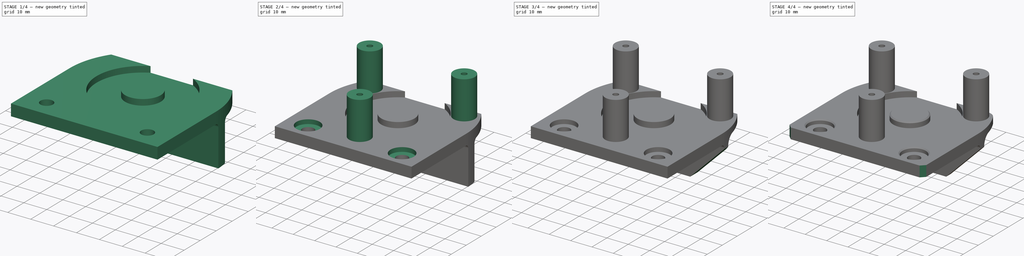
[diagram: build sequence overview — one tinted view per stage of 4, left to right]
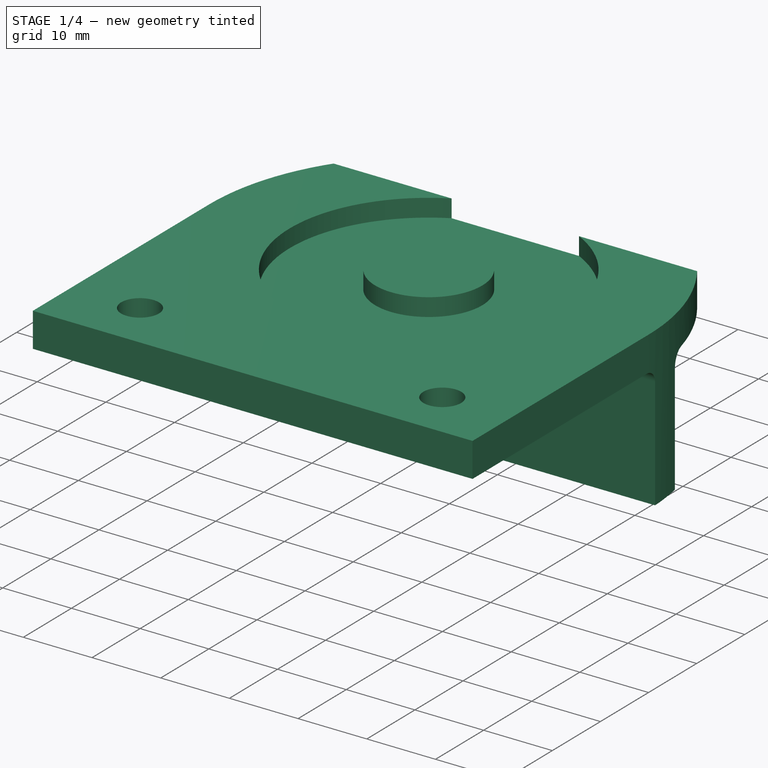
[diagram: stage 1 of 4 — iso view after this stage's code; geometry added in this stage tinted green]
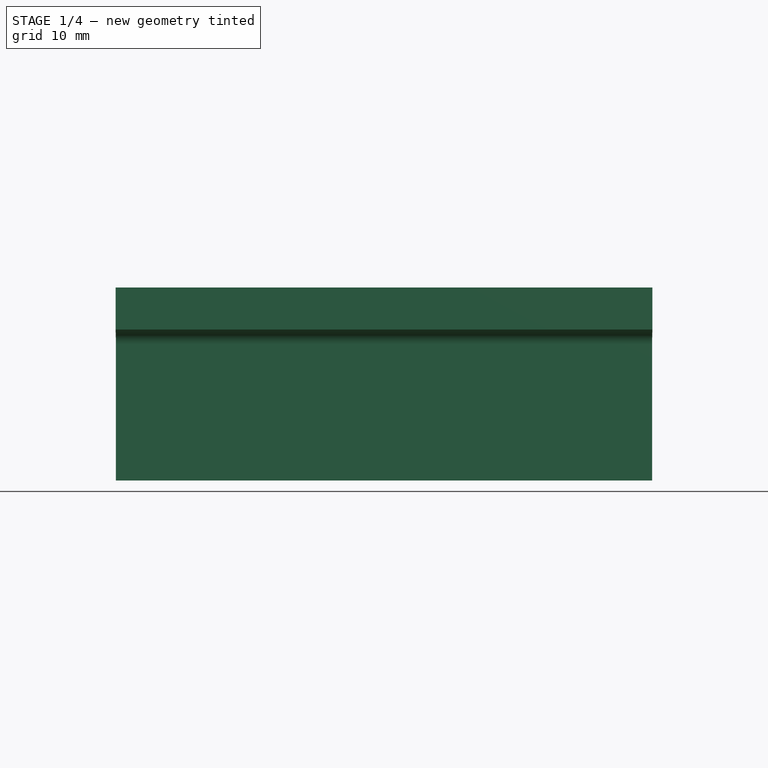
[diagram: stage 1 of 4 — front view after this stage's code; geometry added in this stage tinted green]
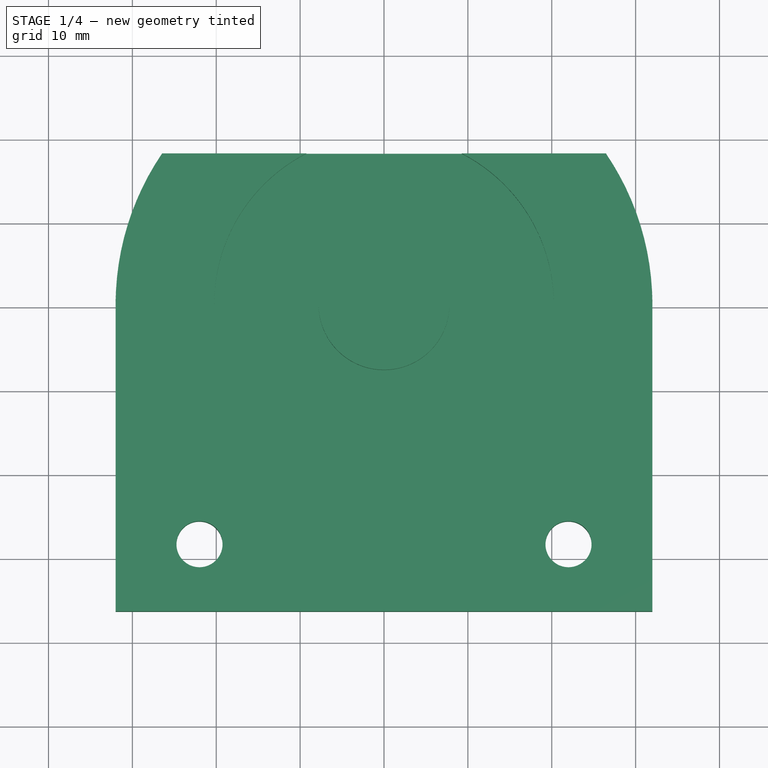
[diagram: stage 1 of 4 — top view after this stage's code; geometry added in this stage tinted green]
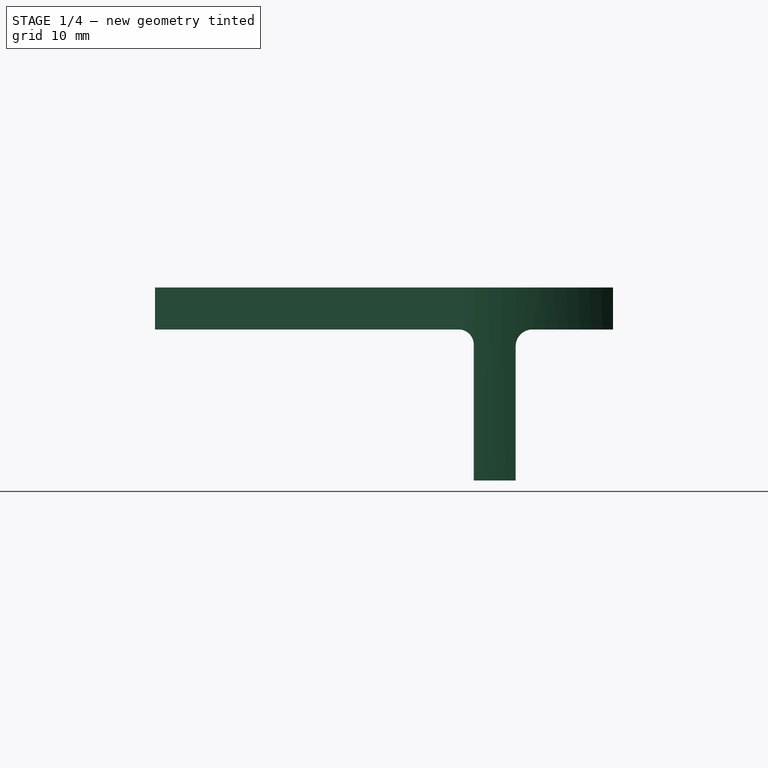
[diagram: stage 1 of 4 — right view after this stage's code; geometry added in this stage tinted green]
FCSTD DOCUMENT  (FreeCAD 0.18R16131 (Git))
Label: _Y_Tensioner_Frame
License: All rights reserved
LicenseURL: http://en.wikipedia.org/wiki/All_rights_reserved
objects: Sketcher::SketchObject×8, PartDesign::Pocket×6, PartDesign::Chamfer×3, PartDesign::Pad×2, PartDesign::Fillet×1, PartDesign::Body×1
note: 29 computed .brp shape members not serialized (recipe doc carries the construction recipe); baked Part::Feature solids carry a one-line shape summary decoded from their .brp

FEATURE [Sketcher::SketchObject] Sketch013
  MapMode = 5
  Placement = pos=(0,0,0) rot=(1,0,0;1.5708rad)
  Support = -> [XZ_Plane066]
  sketch-geometry (9):
    g0: LineSegment StartX=-32 StartY=-2 StartZ=0 EndX=-16 EndY=-18 EndZ=0
    g1: LineSegment StartX=-16 StartY=-18 StartZ=0 EndX=16 EndY=-18 EndZ=0
    g2: LineSegment StartX=16 StartY=-18 StartZ=0 EndX=32 EndY=-2 EndZ=0
    g3: LineSegment StartX=32 StartY=-2 StartZ=0 EndX=33 EndY=-2 EndZ=0
    g4: LineSegment StartX=33 StartY=-2 StartZ=0 EndX=33 EndY=-20 EndZ=0
    g5: LineSegment StartX=33 StartY=-20 StartZ=0 EndX=-33 EndY=-20 EndZ=0
    g6: LineSegment StartX=-33 StartY=-20 StartZ=0 EndX=-33 EndY=-2 EndZ=0
    g7: LineSegment StartX=-33 StartY=-2 StartZ=0 EndX=-32 EndY=-2 EndZ=0
    g8: Circle CenterX=0 CenterY=-10 CenterZ=0 NormalX=0 NormalY=0 NormalZ=1 AngleXU=0 Radius=2.75
  constraints (24):
    c: Coincident(g0,g1)
    c: Coincident(g1,g2)
    c: Coincident(g2,g3)
    c: Horizontal(g3)
    c: Coincident(g3,g4)
    c: Vertical(g4)
    c: Coincident(g4,g5)
    c: Coincident(g5,g6)
    c: Vertical(g6)
    c: Coincident(g6,g7)
    c: Coincident(g7,g0)
    c: Horizontal(g7)
    c: DistanceY(g6,g-1) = 2
    c: Symmetric(g0,g2,g-2)
    c: Symmetric(g5,g4,g-2)
    c: DistanceX(g5,g5) = 66
    c: DistanceX(g0,g2) = 64
    c: DistanceY(g1,g2) = 16
    c: DistanceY(g4,g4) = 18
    c: PointOnObject(g8,g-2)
    c: DistanceY(g8,g-1) = 10
    c: Diameter(g8) = 5.5
    c: Perpendicular(g2,g0)
    c: Symmetric(g1,g0,g-2)
FEATURE [Sketcher::SketchObject] Sketch015
  AttachmentOffset = pos=(0,0,-6.4) rot=(0,0,1;0.017453rad)
  ExternalGeometry = -> [Sketch013]
  MapMode = 5
  Placement = pos=(0,6.4,6.622e-13) rot=(0.999924,-0.008726,0.008726;1.57087rad)
  Support = -> [XZ_Plane066]
  sketch-geometry (1):
    g0: Circle CenterX=-0.174524 CenterY=-9.99848 CenterZ=0 NormalX=0 NormalY=0 NormalZ=1 AngleXU=0 Radius=5.5
  constraints (2):
    c: Coincident(g0,g-3)
    c: Diameter(g0) = 11
FEATURE [Sketcher::SketchObject] Sketch009
  MapMode = 5
  Placement = pos=(0,0,0) rot=(0.57735,0.57735,0.57735;2.0944rad)
  Support = -> [YZ_Plane065]
  sketch-geometry (10):
    g0: LineSegment StartX=-36.6 StartY=0 StartZ=0 EndX=-36.6 EndY=5 EndZ=0
    g1: LineSegment StartX=-36.6 StartY=5 StartZ=0 EndX=18 EndY=5 EndZ=0
    g2: LineSegment StartX=18 StartY=5 StartZ=0 EndX=18 EndY=0 EndZ=0
    g3: LineSegment StartX=18 StartY=-3e-16 StartZ=0 EndX=8.4 EndY=-3e-16 EndZ=0
    g4: LineSegment StartX=6.4 StartY=-2 StartZ=0 EndX=6.4 EndY=-18 EndZ=0
    g5: LineSegment StartX=6.4 StartY=-18 StartZ=0 EndX=1.4 EndY=-18 EndZ=0
    g6: LineSegment StartX=1.4 StartY=-18 StartZ=0 EndX=1.4 EndY=-1.8 EndZ=0
    g7: LineSegment StartX=-0.4 StartY=0 StartZ=0 EndX=-36.6 EndY=0 EndZ=0
    g8: ArcOfCircle CenterX=8.4 CenterY=-2 CenterZ=0 NormalX=0 NormalY=0 NormalZ=1 AngleXU=0 Radius=2 StartAngle=1.5708 EndAngle=3.14159
    g9: ArcOfCircle CenterX=-0.4 CenterY=-1.8 CenterZ=0 NormalX=0 NormalY=0 NormalZ=1 AngleXU=0 Radius=1.8 StartAngle=0 EndAngle=1.5708
  constraints (28):
    c: Coincident(g0,g1)
    c: Horizontal(g1)
    c: Coincident(g1,g2)
    c: Coincident(g2,g3)
    c: Horizontal(g3)
    c: Vertical(g4)
    c: Coincident(g4,g5)
    c: Coincident(g5,g6)
    c: Vertical(g6)
    c: Coincident(g7,g0)
    c: Horizontal(g7)
    c: Vertical(g0)
    c: Vertical(g2)
    c: Horizontal(g5)
    c: DistanceX(g0,g5) = 38
    c: DistanceY(g0,g0) = 5
    c: Equal(g0,g2)
    c: DistanceY(g4,g2) = 18
    c: Tangent(g3,g8) = -1.5708
    c: Tangent(g4,g8) = -1.5708
    c: Radius(g8) = 2
    c: Equal(g0,g5)
    c: DistanceX(g1,g1) = 54.6
    c: DistanceX(g-1,g5) = 1.4
    c: Tangent(g7,g9) = -1.5708
    c: Tangent(g6,g9) = -1.5708
    c: Radius(g9) = 1.8
    c: PointOnObject(g7,g-1)
FEATURE [Sketcher::SketchObject] Sketch011
  AttachmentOffset = pos=(0,0,5) rot=(0,0,1;0rad)
  ExternalGeometry = -> [Sketch009]
  MapMode = 5
  Placement = pos=(0,0,5) rot=(0,0,1;0rad)
  Support = -> [XY_Plane066]
  sketch-geometry (10):
    g0: ArcOfCircle CenterX=0 CenterY=0 CenterZ=0 NormalX=0 NormalY=0 NormalZ=1 AngleXU=0 Radius=32 StartAngle=2.54419 EndAngle=3.14159
    g1: ArcOfCircle CenterX=0 CenterY=0 CenterZ=0 NormalX=0 NormalY=0 NormalZ=1 AngleXU=0 Radius=32 StartAngle=0 EndAngle=0.597406
    g2: LineSegment StartX=-26.4575 StartY=18 StartZ=0 EndX=26.4575 EndY=18 EndZ=0
    g3: LineSegment StartX=-32 StartY=3.9e-15 StartZ=0 EndX=-33 EndY=3.9e-15 EndZ=0
    g4: LineSegment StartX=-33 StartY=3.9e-15 StartZ=0 EndX=-33 EndY=19 EndZ=0
    g5: LineSegment StartX=-33 StartY=19 StartZ=0 EndX=33 EndY=19 EndZ=0
    g6: LineSegment StartX=33 StartY=19 StartZ=0 EndX=33 EndY=0 EndZ=0
    g7: LineSegment StartX=33 StartY=0 StartZ=0 EndX=32 EndY=0 EndZ=0
    g8: Circle CenterX=22 CenterY=-28.6 CenterZ=0 NormalX=0 NormalY=0 NormalZ=1 AngleXU=0 Radius=2.75
    g9: Circle CenterX=-22 CenterY=-28.6 CenterZ=0 NormalX=0 NormalY=0 NormalZ=1 AngleXU=0 Radius=2.75
  constraints (27):
    c: Coincident(g0,g-1)
    c: Coincident(g1,g0)
    c: Coincident(g2,g0)
    c: Coincident(g2,g1)
    c: Horizontal(g2)
    c: PointOnObject(g-3,g2)
    c: Symmetric(g0,g1,g-2)
    c: DistanceX(g0,g1) = 64
    c: Horizontal(g3)
    c: Coincident(g3,g4)
    c: Vertical(g4)
    c: Coincident(g4,g5)
    c: Coincident(g5,g6)
    c: PointOnObject(g6,g-1)
    c: Vertical(g6)
    c: Coincident(g7,g1)
    c: PointOnObject(g1,g-1)
    c: Coincident(g7,g6)
    c: Coincident(g3,g0)
    c: Symmetric(g4,g5,g-2)
    c: DistanceX(g5,g5) = 66
    c: DistanceY(g6,g6) = 19
    c: Symmetric(g9,g8,g-2)
    c: DistanceY(g8,g-1) = 28.6
    c: DistanceX(g9,g8) = 44
    c: Equal(g9,g8)
    c: Diameter(g9) = 5.5
FEATURE [Sketcher::SketchObject] Sketch014
  AttachmentOffset = pos=(0,0,5) rot=(0,0,1;0rad)
  ExternalGeometry = -> [Sketch011]
  MapMode = 5
  Placement = pos=(0,0,5) rot=(0,0,1;0rad)
  Support = -> [XY_Plane066]
  sketch-geometry (2):
    g0: Circle CenterX=-22 CenterY=-28.6 CenterZ=0 NormalX=0 NormalY=0 NormalZ=1 AngleXU=0 Radius=5.5
    g1: Circle CenterX=22 CenterY=-28.6 CenterZ=0 NormalX=0 NormalY=0 NormalZ=1 AngleXU=0 Radius=5.5
  constraints (4):
    c: Coincident(g0,g-3)
    c: Coincident(g1,g-4)
    c: Diameter(g0) = 11
    c: Equal(g0,g1)
FEATURE [Sketcher::SketchObject] Sketch010
  AttachmentOffset = pos=(0,0,5) rot=(0,0,1;0rad)
  MapMode = 5
  Placement = pos=(0,0,5) rot=(0,0,1;0rad)
  Support = -> [XY_Plane066]
  sketch-geometry (2):
    g0: Circle CenterX=0 CenterY=0 CenterZ=0 NormalX=0 NormalY=0 NormalZ=1 AngleXU=0 Radius=7.8
    g1: Circle CenterX=0 CenterY=0 CenterZ=0 NormalX=0 NormalY=0 NormalZ=1 AngleXU=0 Radius=20.25
  constraints (4):
    c: Coincident(g1,g0)
    c: Coincident(g0,g-1)
    c: Diameter(g0) = 15.6
    c: Diameter(g1) = 40.5
FEATURE [PartDesign::Pad] Pad001
  Length = 64
  Length2 = 100
  Midplane = true
  Placement = pos=(0,0,0) rot=(0.57735,0.57735,0.57735;2.0944rad)
  Profile = -> Sketch009
  Type = 0
FEATURE [PartDesign::Pocket] Pocket
  BaseFeature = -> Pad001
  Length = 2.6
  Length2 = 100
  Placement = pos=(0,0,0) rot=(0.57735,0.57735,0.57735;2.0944rad)
  Profile = -> Sketch010
  Type = 0
FEATURE [PartDesign::Pocket] Pocket001
  BaseFeature = -> Pocket
  Length = 5
  Length2 = 100
  Placement = pos=(0,0,0) rot=(0.57735,0.57735,0.57735;2.0944rad)
  Profile = -> Sketch011
  Type = 1
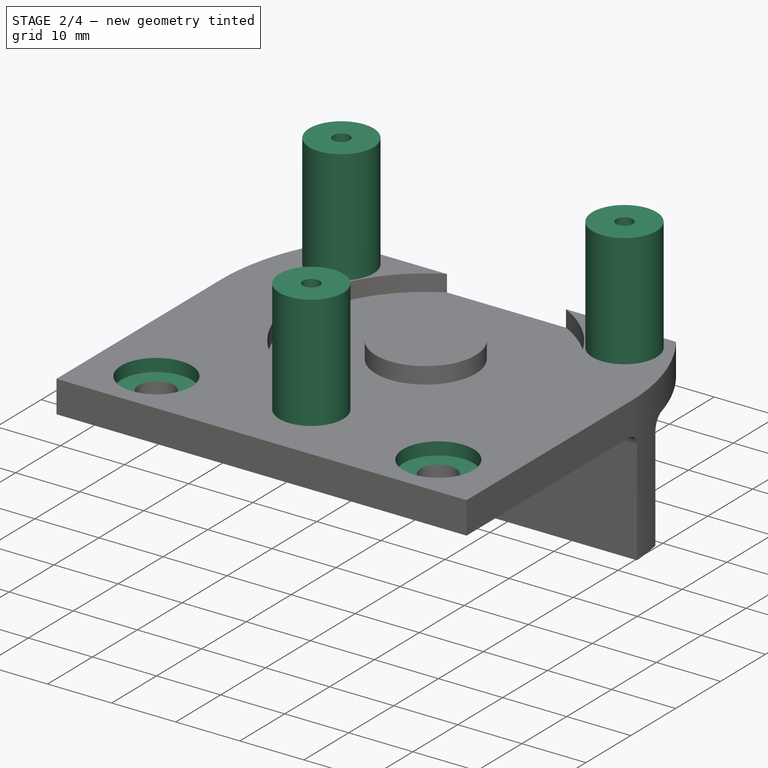
[diagram: stage 2 of 4 — iso view after this stage's code; geometry added in this stage tinted green]
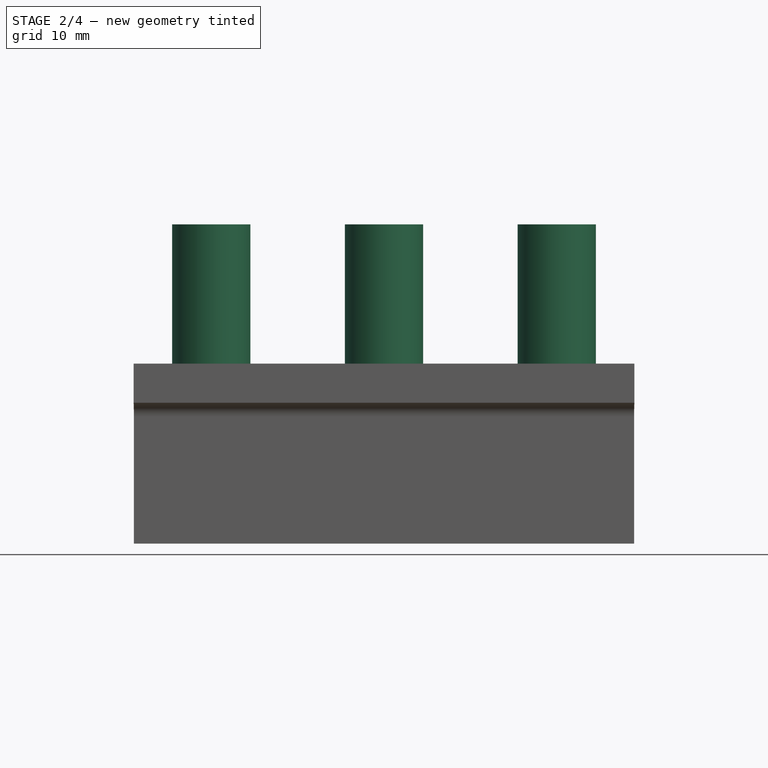
[diagram: stage 2 of 4 — front view after this stage's code; geometry added in this stage tinted green]
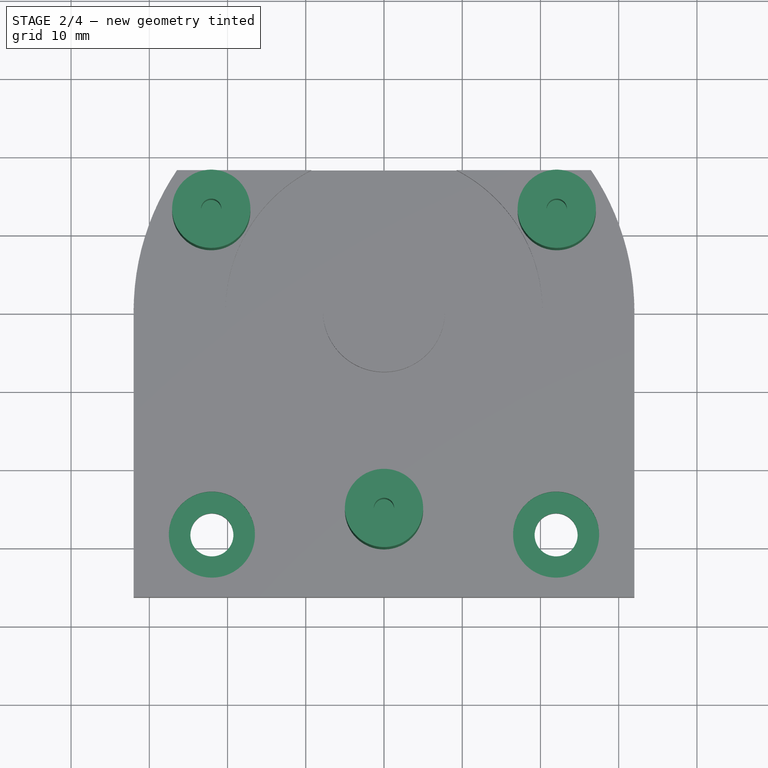
[diagram: stage 2 of 4 — top view after this stage's code; geometry added in this stage tinted green]
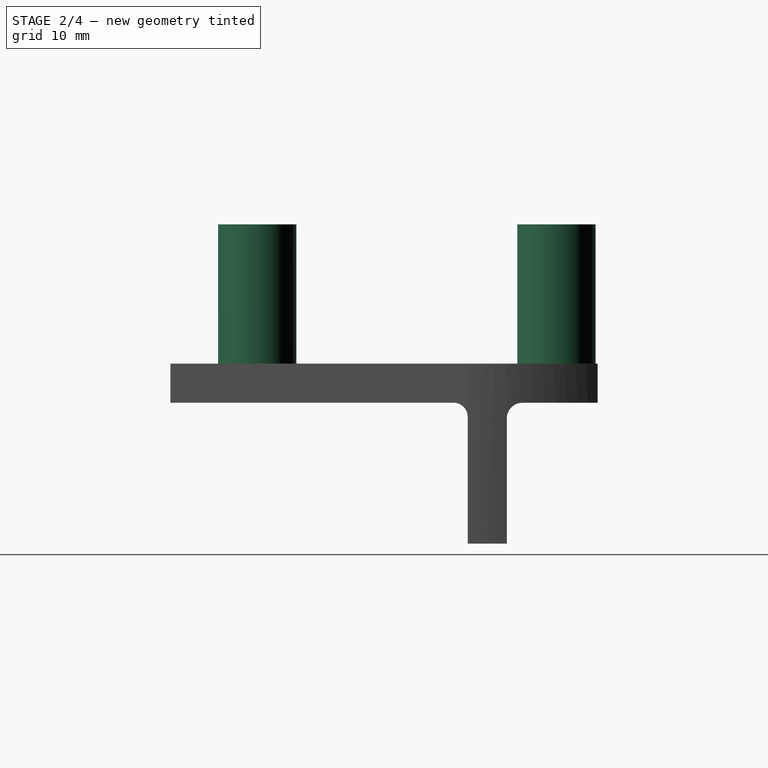
[diagram: stage 2 of 4 — right view after this stage's code; geometry added in this stage tinted green]
FEATURE [PartDesign::Pocket] Pocket004
  BaseFeature = -> Pocket001
  Length = 2
  Length2 = 100
  Placement = pos=(0,0,0) rot=(0.57735,0.57735,0.57735;2.0944rad)
  Profile = -> Sketch014
  Type = 0
FEATURE [Sketcher::SketchObject] Sketch008
  AttachmentOffset = pos=(0,0,5) rot=(0,0,1;0rad)
  MapMode = 5
  Placement = pos=(0,0,5) rot=(0,0,1;0rad)
  Support = -> [XY_Plane066]
  sketch-geometry (6):
    g0: LineSegment [constr] StartX=0 StartY=0 StartZ=0 EndX=22.0836 EndY=12.75 EndZ=0
    g1: LineSegment [constr] StartX=0 StartY=0 StartZ=0 EndX=-22.0836 EndY=12.75 EndZ=0
    g2: Circle CenterX=-22.0836 CenterY=12.75 CenterZ=0 NormalX=0 NormalY=0 NormalZ=1 AngleXU=0 Radius=5
    g3: Circle CenterX=22.0836 CenterY=12.75 CenterZ=0 NormalX=0 NormalY=0 NormalZ=1 AngleXU=0 Radius=5
    g4: Circle CenterX=0 CenterY=-25.5 CenterZ=0 NormalX=0 NormalY=0 NormalZ=1 AngleXU=0 Radius=5
    g5: Circle [constr] CenterX=0 CenterY=0 CenterZ=0 NormalX=0 NormalY=0 NormalZ=1 AngleXU=0 Radius=25.5
  constraints (15):
    c: Coincident(g0,g-1)
    c: Coincident(g1,g-1)
    c: PointOnObject(g4,g-2)
    c: Coincident(g5,g-1)
    c: PointOnObject(g4,g5)
    c: Radius(g4) = 5
    c: Equal(g4,g3)
    c: Equal(g4,g2)
    c: PointOnObject(g1,g5)
    c: PointOnObject(g0,g5)
    c: Coincident(g3,g0)
    c: Coincident(g1,g2)
    c: Angle(g-1,g0) = 0.523599
    c: Radius(g5) = 25.5
    c: Angle(g-1,g1) = 2.61799
FEATURE [Sketcher::SketchObject] Sketch012
  AttachmentOffset = pos=(0,0,22.8) rot=(0,0,1;0rad)
  ExternalGeometry = -> [Sketch008]
  MapMode = 5
  Placement = pos=(0,0,22.8) rot=(0,0,1;0rad)
  Support = -> [XY_Plane066]
  sketch-geometry (3):
    g0: Circle CenterX=-22.0836 CenterY=12.75 CenterZ=0 NormalX=0 NormalY=0 NormalZ=1 AngleXU=0 Radius=1.3
    g1: Circle CenterX=22.0836 CenterY=12.75 CenterZ=0 NormalX=0 NormalY=0 NormalZ=1 AngleXU=0 Radius=1.3
    g2: Circle CenterX=0 CenterY=-25.5 CenterZ=0 NormalX=0 NormalY=0 NormalZ=1 AngleXU=0 Radius=1.3
  constraints (6):
    c: Coincident(g0,g-3)
    c: Coincident(g1,g-4)
    c: Coincident(g2,g-5)
    c: Equal(g1,g2)
    c: Equal(g2,g0)
    c: Diameter(g1) = 2.6
FEATURE [PartDesign::Pad] Pad002
  BaseFeature = -> Pocket004
  Length = 17.8
  Length2 = 100
  Placement = pos=(0,0,0) rot=(0.57735,0.57735,0.57735;2.0944rad)
  Profile = -> Sketch008
  Type = 0
FEATURE [PartDesign::Pocket] Pocket002
  BaseFeature = -> Pad002
  Length = 10
  Length2 = 100
  Placement = pos=(0,0,0) rot=(0.57735,0.57735,0.57735;2.0944rad)
  Profile = -> Sketch012
  Type = 0
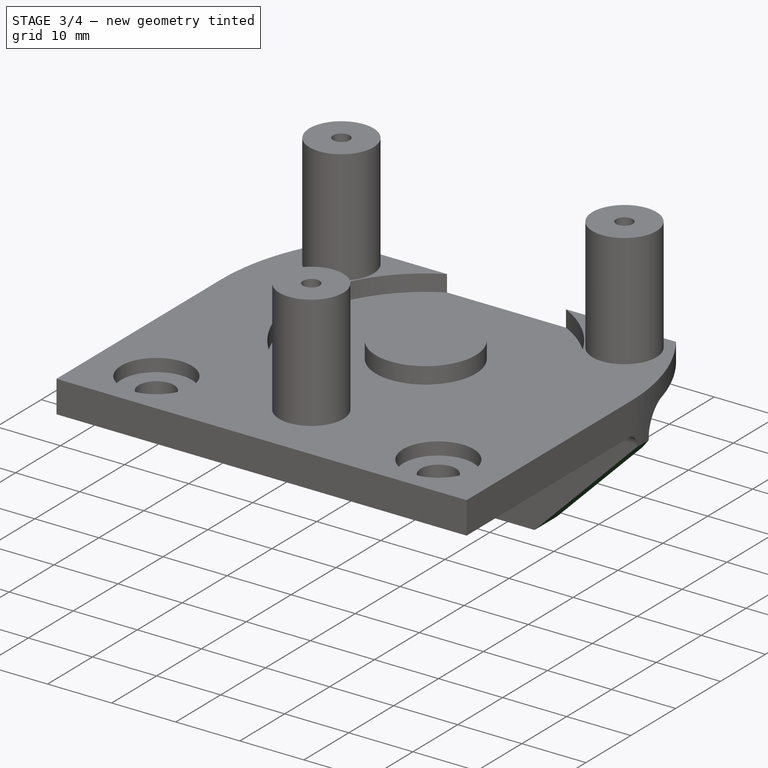
[diagram: stage 3 of 4 — iso view after this stage's code; geometry added in this stage tinted green]
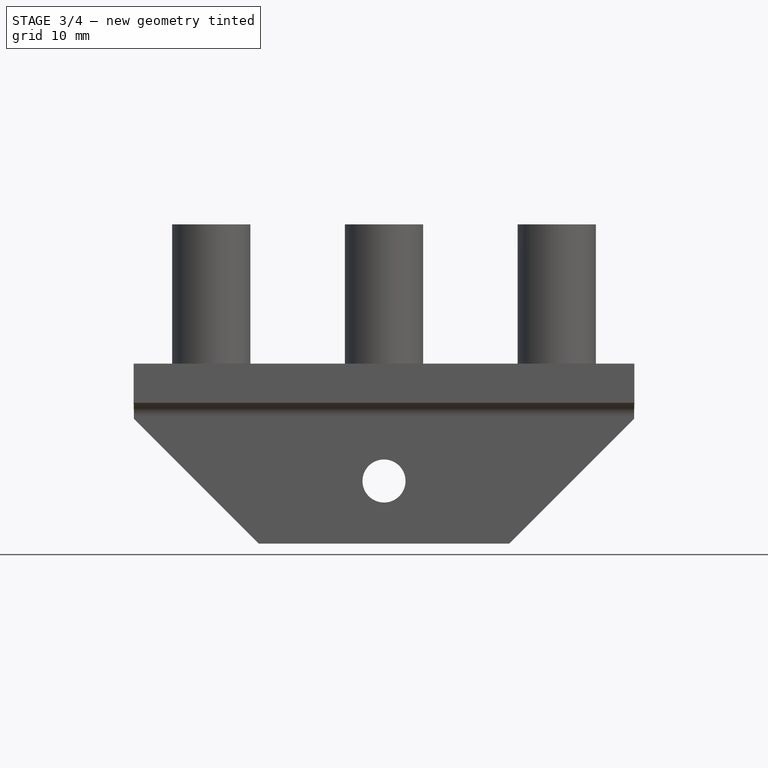
[diagram: stage 3 of 4 — front view after this stage's code; geometry added in this stage tinted green]
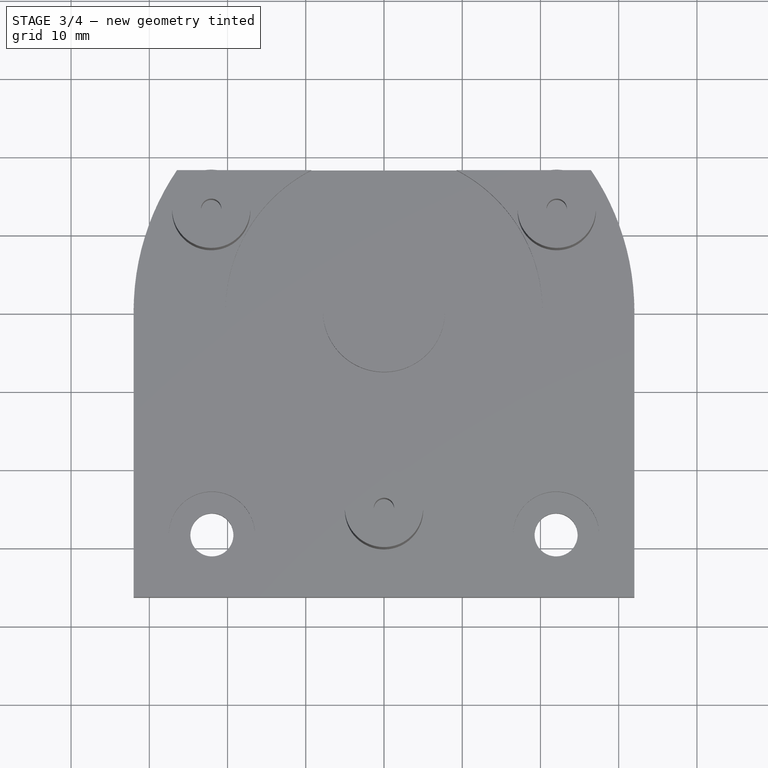
[diagram: stage 3 of 4 — top view after this stage's code; geometry added in this stage tinted green]
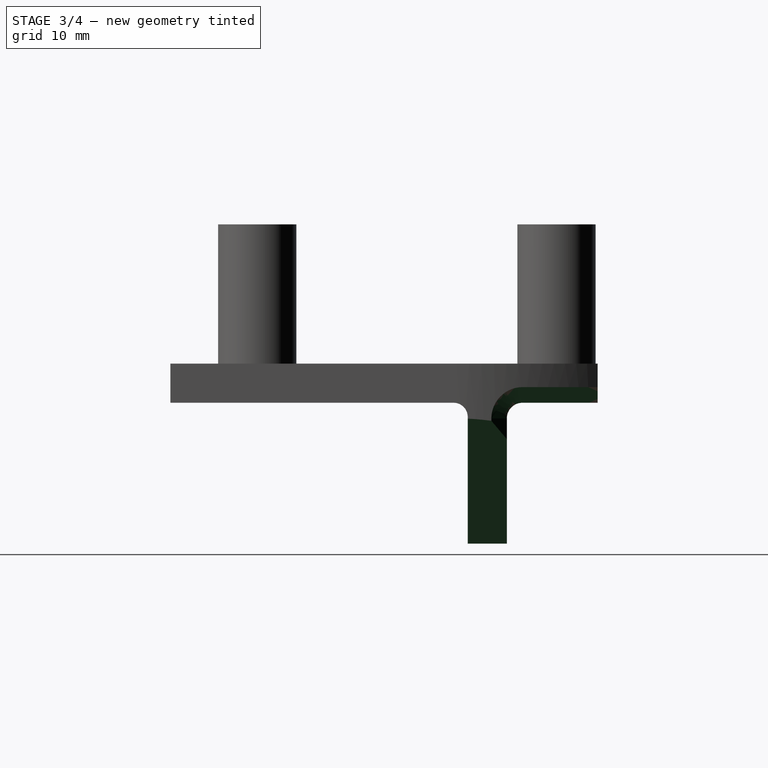
[diagram: stage 3 of 4 — right view after this stage's code; geometry added in this stage tinted green]
FEATURE [PartDesign::Pocket] Pocket003
  BaseFeature = -> Pocket002
  Length = 5
  Length2 = 100
  Placement = pos=(0,0,0) rot=(0.57735,0.57735,0.57735;2.0944rad)
  Profile = -> Sketch013
  Type = 1
FEATURE [PartDesign::Pocket] Pocket005
  BaseFeature = -> Pocket003
  Length = 2
  Length2 = 100
  Placement = pos=(0,0,0) rot=(0.57735,0.57735,0.57735;2.0944rad)
  Profile = -> Sketch015
  Reversed = true
  Type = 0
FEATURE [PartDesign::Chamfer] Chamfer
  Base = -> Pocket005 [Edge45,Edge46,Edge38,Edge37]
  BaseFeature = -> Pocket005
  Placement = pos=(0,0,0) rot=(0.57735,0.57735,0.57735;2.0944rad)
  Size = 2
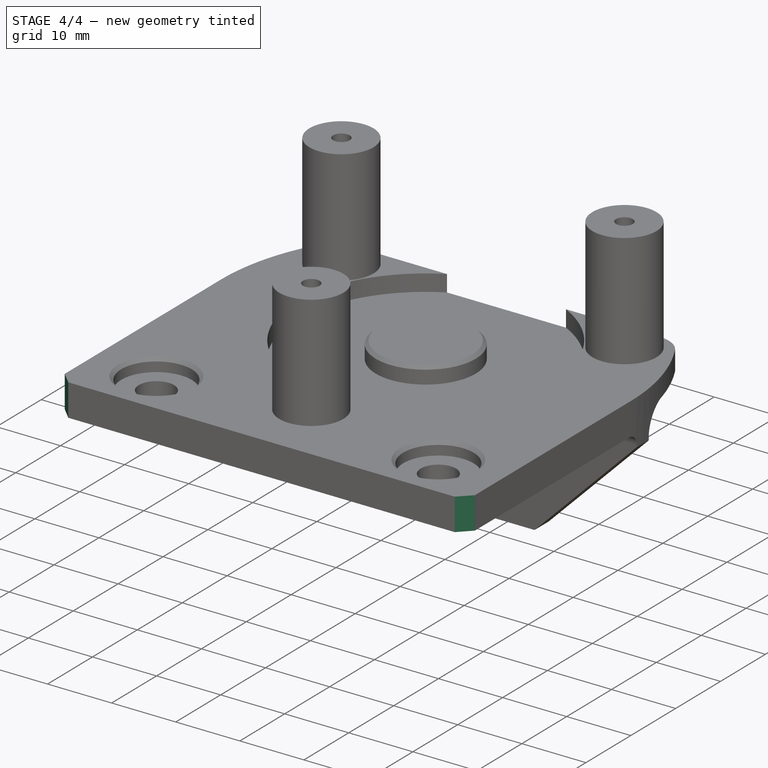
[diagram: stage 4 of 4 — iso view after this stage's code; geometry added in this stage tinted green]
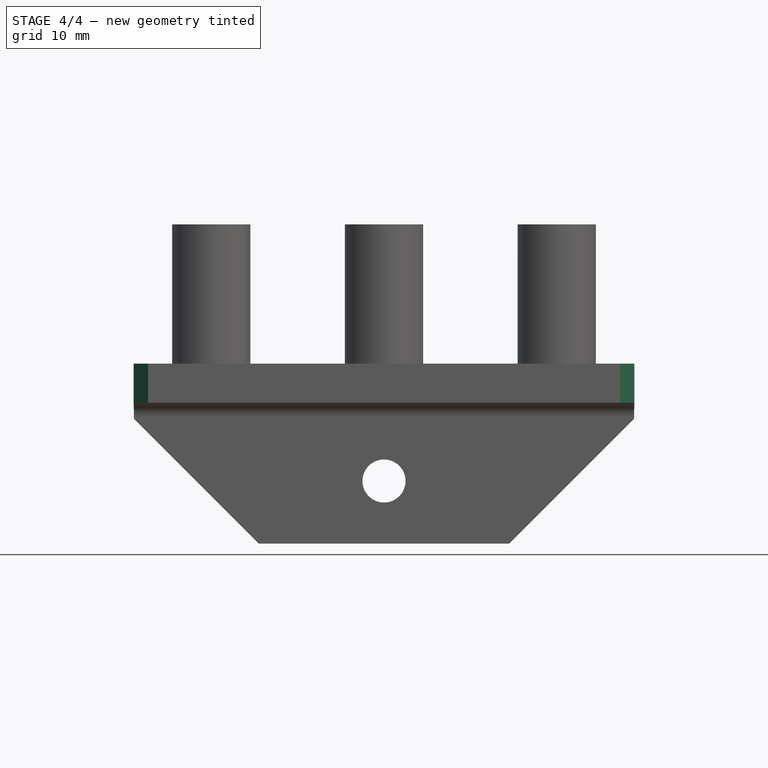
[diagram: stage 4 of 4 — front view after this stage's code; geometry added in this stage tinted green]
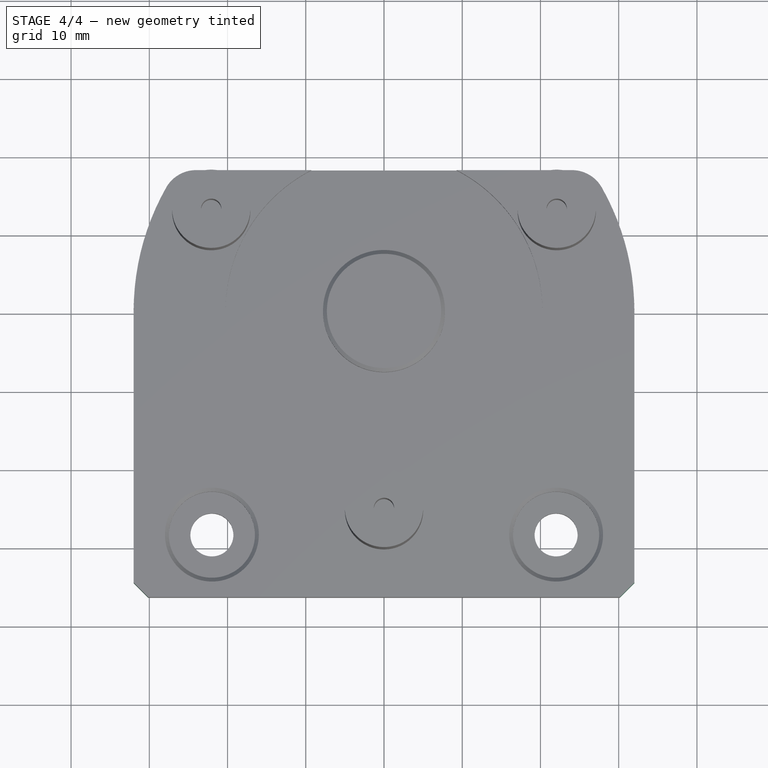
[diagram: stage 4 of 4 — top view after this stage's code; geometry added in this stage tinted green]
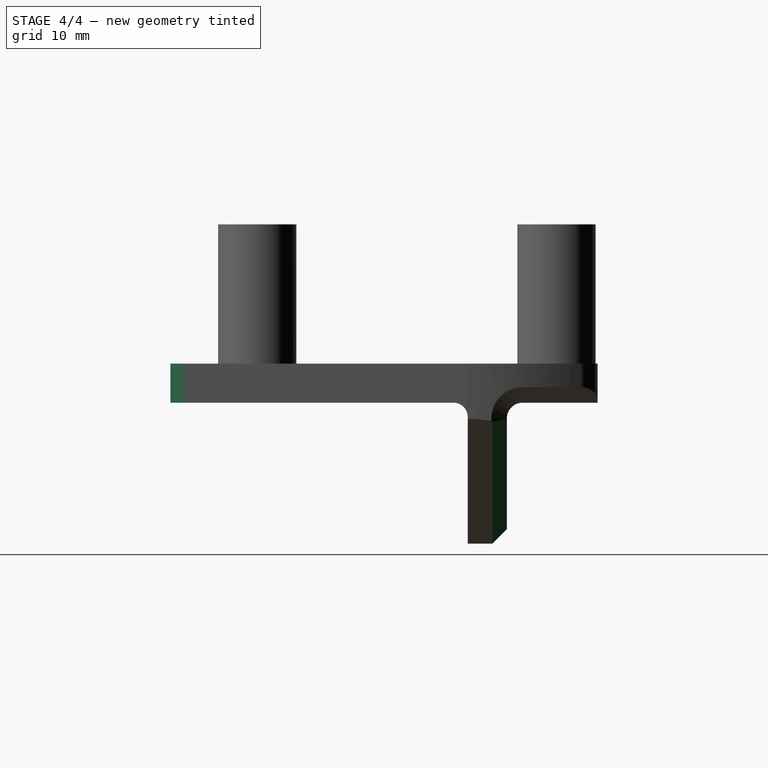
[diagram: stage 4 of 4 — right view after this stage's code; geometry added in this stage tinted green]
FEATURE [PartDesign::Chamfer] Chamfer001
  Base = -> Chamfer [Edge52,Edge50,Edge10,Edge31,Edge70]
  BaseFeature = -> Chamfer
  Placement = pos=(0,0,0) rot=(0.57735,0.57735,0.57735;2.0944rad)
  Size = 1.85
FEATURE [PartDesign::Chamfer] Chamfer002
  Base = -> Chamfer001 [Edge59,Edge62,Edge108,Edge30]
  BaseFeature = -> Chamfer001
  Placement = pos=(0,0,0) rot=(0.57735,0.57735,0.57735;2.0944rad)
  Size = 0.5
FEATURE [PartDesign::Fillet] Fillet
  Base = -> Chamfer002 [Edge37,Edge48]
  BaseFeature = -> Chamfer002
  Placement = pos=(0,0,0) rot=(0.57735,0.57735,0.57735;2.0944rad)
  Radius = 4.4
FEATURE [PartDesign::Body] Body001082169  label="Y_Tensioner_Frame"
  Group = -> [Sketch008,Sketch009,Pad001,Sketch010,Pocket,Sketch011,Pocket001,Sketch014,Pocket004,Pad002,Sketch012,Pocket002,Sketch013,Pocket003,Sketch015,Pocket005,Chamfer,Chamfer001,Chamfer002,Fillet]
  Origin = -> Origin066
  Placement = pos=(0,0,0) rot=(0,0.707107,0.707107;3.14159rad)
  Tip = -> Fillet
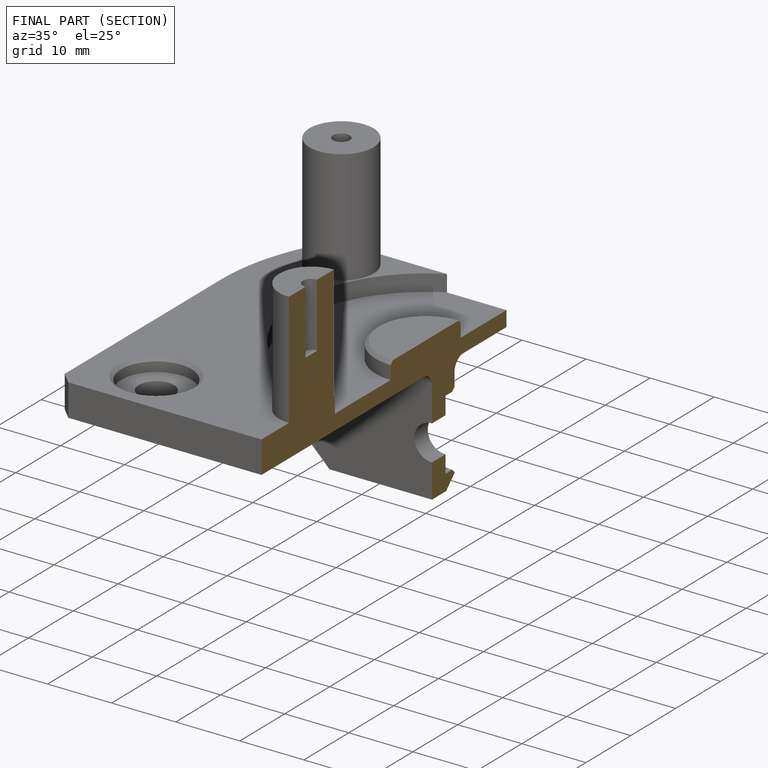
[diagram: finished part — half-section view (interior)]
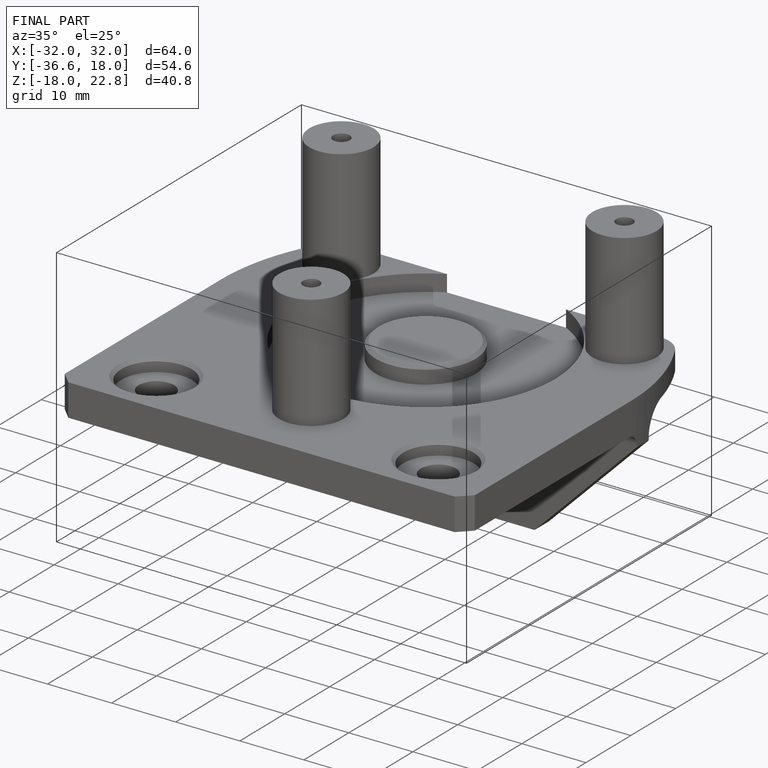
[diagram: finished part — iso view with bounding-box wireframe]
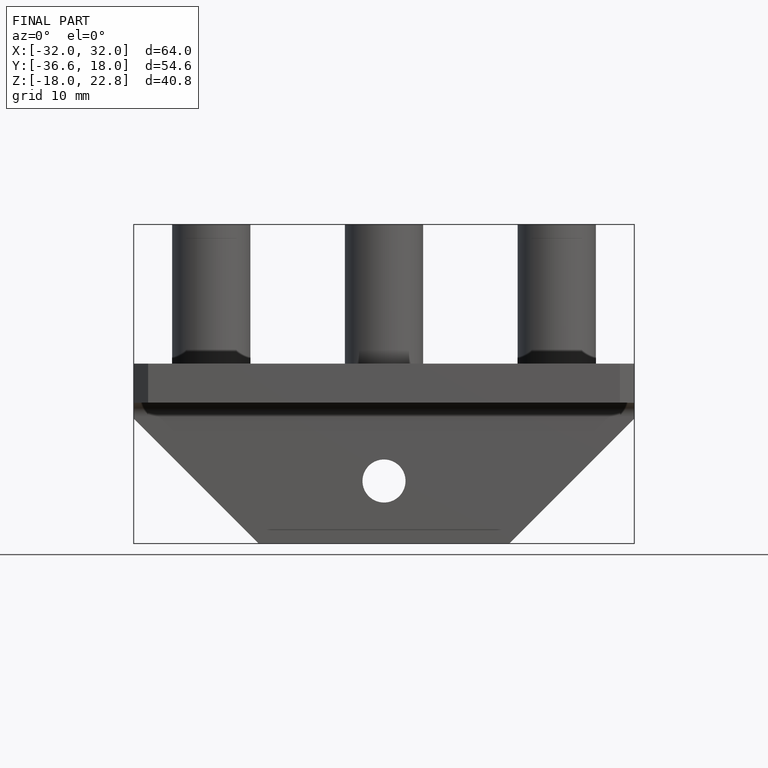
[diagram: finished part — front view with bounding-box wireframe]
